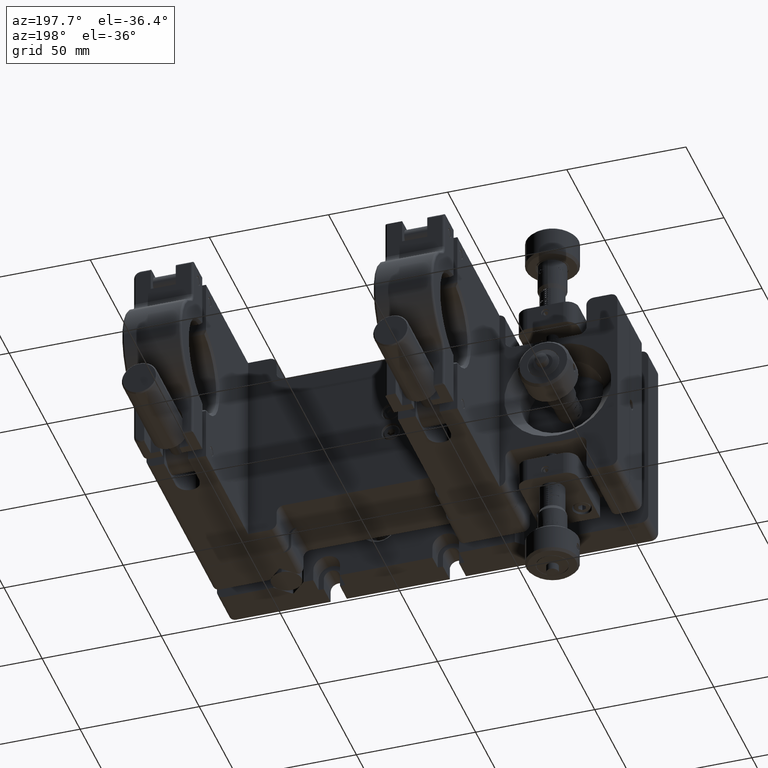
[diagram: clean part render]
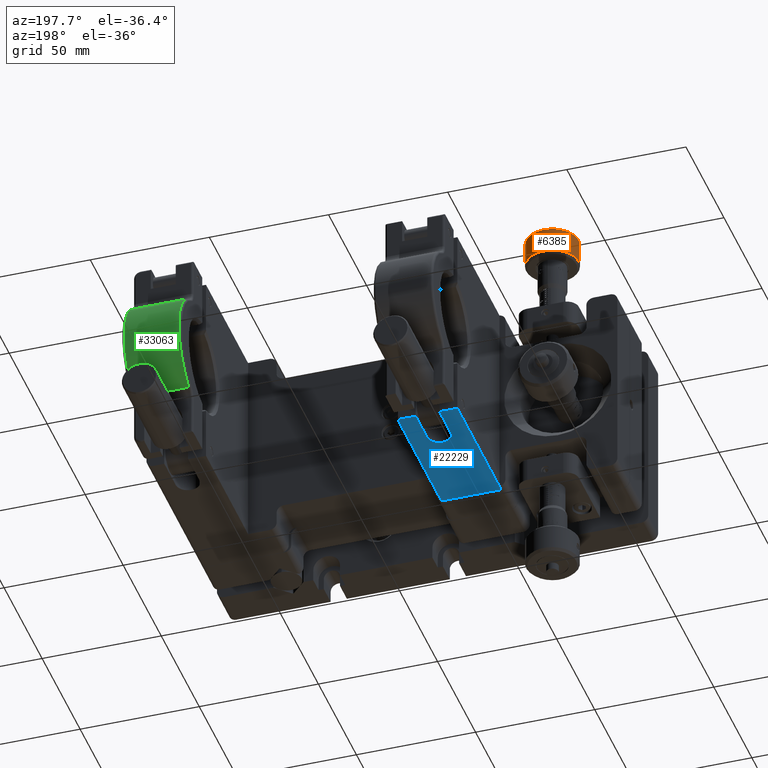
[diagram: same view with three faces highlighted in distinct colors, each labeled with its STEP entity id]
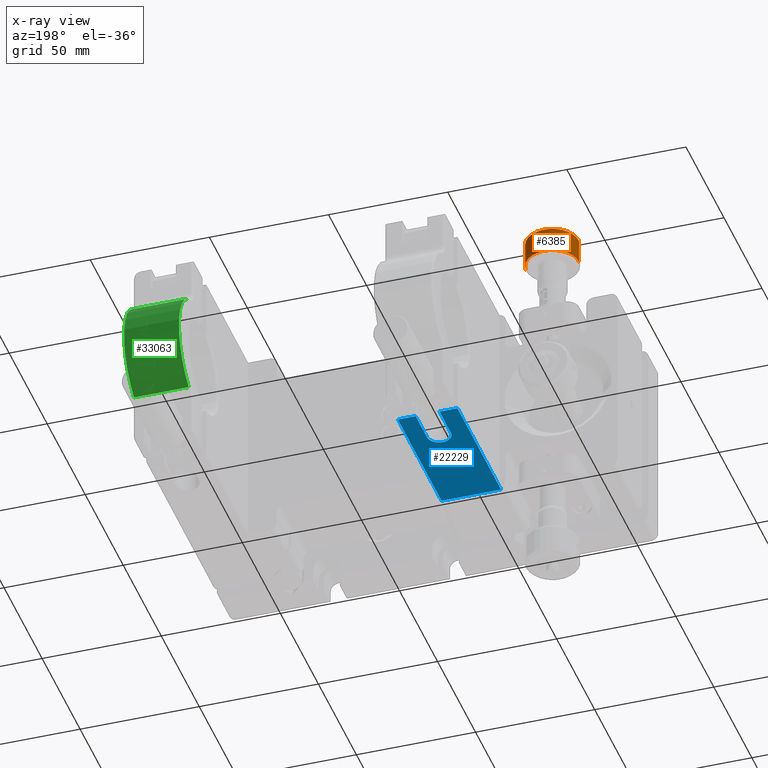
[diagram: x-ray of the same camera — body ghosted, the three highlighted faces saturated]
A machine part, auxiliary view with three faces highlighted in distinct colors.
The next image is the same camera in x-ray (body ghosted, the three faces saturated) — at least one of them is partly hidden behind the body in this view.
Their STEP definitions:

[orange] entity #6385 — the highlighted cylindrical surface (edge-blend (fillet) strip) has radius 11 mm, axis along (0, -0, 1).
#577 = CIRCLE ( 'NONE', #45514, 10.99999999999999289 ) ;
#1348 = CARTESIAN_POINT ( 'NONE',  ( -49.24743490391165324, 39.22147659464145164, 73.31698230728287058 ) ) ;
#1877 = CARTESIAN_POINT ( 'NONE',  ( -49.02399234990054566, 37.62612400110649702, 75.40000000000161151 ) ) ;
#2421 = EDGE_CURVE ( 'NONE', #47675, #41985, #31414, .T. ) ;
#2876 = DIRECTION ( 'NONE',  ( 1.534399302119773750E-16, -9.239891937054594829E-17, 1.000000000000000000 ) ) ;
#3062 = ORIENTED_EDGE ( 'NONE', *, *, #7423, .F. ) ;
#4293 = CARTESIAN_POINT ( 'NONE',  ( -49.25709353723303252, 39.26430977925058841, 73.75000000000163425 ) ) ;
#5588 = DIRECTION ( 'NONE',  ( 0.9978188772816595220, 0.06601127282796762086, 0.000000000000000000 ) ) ;
#6385 = ADVANCED_FACE ( 'NONE', ( #13189 ), #48201, .T. ) ;
#7151 = CARTESIAN_POINT ( 'NONE',  ( -49.02399234990054566, 37.62612400110649702, 68.50000000000163425 ) ) ;
#7423 = EDGE_CURVE ( 'NONE', #36316, #17946, #16661, .T. ) ;
#7750 = CARTESIAN_POINT ( 'NONE',  ( -49.02399234990054566, 37.62612400110649702, 72.10000000000164277 ) ) ;
#7763 = DIRECTION ( 'NONE',  ( 0.9978188772816595220, 0.06601127282796762086, 0.000000000000000000 ) ) ;
#7893 = CARTESIAN_POINT ( 'NONE',  ( -49.17620915534226356, 38.86253043917927386, 74.83967142858456612 ) ) ;
#8460 = CARTESIAN_POINT ( 'NONE',  ( -49.22200984546415725, 39.09924357259985328, 74.48140365633125271 ) ) ;
#8645 = CARTESIAN_POINT ( 'NONE',  ( -49.02399234990058829, 37.62612400110649702, 79.00000000000162004 ) ) ;
#9409 = B_SPLINE_CURVE_WITH_KNOTS ( 'NONE', 3,
 ( #40685, #54196, #1348, #14861, #36964, #15137, #16281, #25444, #11400, #41820, #15992, #33791 ),
 .UNSPECIFIED., .F., .F.,
 ( 4, 2, 2, 2, 2, 4 ),
 ( 0.005165937910799752245, 0.005811786772431807094, 0.006457635634063861943, 0.006780560064879889368, 0.007103484495695917660, 0.007749333357327972509 ),
 .UNSPECIFIED. ) ;
#11400 = CARTESIAN_POINT ( 'NONE',  ( -49.09624978631011061, 38.35542544317431179, 72.26753809889667934 ) ) ;
#11607 = ORIENTED_EDGE ( 'NONE', *, *, #51449, .T. ) ;
#11681 = EDGE_LOOP ( 'NONE', ( #53623, #51785, #13233, #11607, #3062, #37984, #15139 ) ) ;
#13043 = CARTESIAN_POINT ( 'NONE',  ( -49.14969980694294094, 38.71023746899343365, 74.99342857245446226 ) ) ;
#13189 = FACE_OUTER_BOUND ( 'NONE', #11681, .T. ) ;
#13233 = ORIENTED_EDGE ( 'NONE', *, *, #52459, .T. ) ;
#13652 = CARTESIAN_POINT ( 'NONE',  ( -59.99999999999884892, 36.89999999999886171, 79.00000000000162004 ) ) ;
#14861 = CARTESIAN_POINT ( 'NONE',  ( -49.21357904118007554, 39.05871087091723126, 72.91967307894962858 ) ) ;
#15041 = DIRECTION ( 'NONE',  ( 1.534399302119773750E-16, -9.239891937054594829E-17, 1.000000000000000000 ) ) ;
#15137 = CARTESIAN_POINT ( 'NONE',  ( -49.14987460866467472, 38.71125043657944786, 72.50756602743635426 ) ) ;
#15139 = ORIENTED_EDGE ( 'NONE', *, *, #27710, .T. ) ;
#15992 = CARTESIAN_POINT ( 'NONE',  ( -49.03839300840674298, 37.84380271395619388, 72.10000000000162856 ) ) ;
#16281 = CARTESIAN_POINT ( 'NONE',  ( -49.13606821760236443, 38.62715301422448988, 72.43791493255282887 ) ) ;
#16661 = LINE ( 'NONE', #38480, #36790 ) ;
#17914 = CARTESIAN_POINT ( 'NONE',  ( -49.25473060247862378, 39.25364445237889299, 73.96718926860043553 ) ) ;
#17946 = VERTEX_POINT ( 'NONE', #8645 ) ;
#18540 = DIRECTION ( 'NONE',  ( -0.9978188772816595220, -0.06601127282796762086, 0.000000000000000000 ) ) ;
#21086 = CARTESIAN_POINT ( 'NONE',  ( -49.10943419862590531, 38.45035500487776403, 75.18119796748949568 ) ) ;
#21508 = CARTESIAN_POINT ( 'NONE',  ( -59.99999999999880629, 36.89999999999885461, 67.50000000000163425 ) ) ;
#22216 = CARTESIAN_POINT ( 'NONE',  ( -49.07147866018654980, 38.15596357247730452, 75.31568685662094254 ) ) ;
#23132 = DIRECTION ( 'NONE',  ( 1.534399302119773750E-16, -9.239891937054593597E-17, 1.000000000000000000 ) ) ;
#25444 = CARTESIAN_POINT ( 'NONE',  ( -49.10930695835435955, 38.44947616302601290, 72.31826889236921829 ) ) ;
#25681 = CARTESIAN_POINT ( 'NONE',  ( -49.09614931041789987, 38.35466948460718584, 75.23283266930815216 ) ) ;
#26528 = CARTESIAN_POINT ( 'NONE',  ( -49.03996515845084048, 37.84278703092635254, 75.38919270049608201 ) ) ;
#27710 = EDGE_CURVE ( 'NONE', #40336, #45657, #9409, .T. ) ;
#28730 = DIRECTION ( 'NONE',  ( 1.534399302119773750E-16, -9.239891937054593597E-17, 1.000000000000000000 ) ) ;
#28792 = LINE ( 'NONE', #55490, #33300 ) ;
#28836 = CARTESIAN_POINT ( 'NONE',  ( -70.97600765009705981, 36.17387599889121219, 67.50000000000163425 ) ) ;
#30563 = CARTESIAN_POINT ( 'NONE',  ( -49.18876145783713127, 38.92996100948413840, 74.75649480344473830 ) ) ;
#31414 = CIRCLE ( 'NONE', #50685, 10.99999999999999289 ) ;
#32461 = EDGE_CURVE ( 'NONE', #36316, #40336, #50102, .T. ) ;
#32641 = EDGE_CURVE ( 'NONE', #47675, #45657, #28792, .T. ) ;
#33300 = VECTOR ( 'NONE', #15041, 1000.000000000000000 ) ;
#33791 = CARTESIAN_POINT ( 'NONE',  ( -49.02399234990054566, 37.62612400110649702, 72.10000000000164277 ) ) ;
#34122 = VERTEX_POINT ( 'NONE', #41892 ) ;
#34177 = CARTESIAN_POINT ( 'NONE',  ( -59.99999999999880629, 36.89999999999885461, 68.50000000000163425 ) ) ;
#34586 = CARTESIAN_POINT ( 'NONE',  ( -49.24566719432481676, 39.21187857343367256, 74.17891999544271187 ) ) ;
#36316 = VERTEX_POINT ( 'NONE', #1877 ) ;
#36790 = VECTOR ( 'NONE', #2876, 1000.000000000000000 ) ;
#36902 = LINE ( 'NONE', #28836, #49240 ) ;
#36964 = CARTESIAN_POINT ( 'NONE',  ( -49.18922546067236823, 38.93728998097869010, 72.73586319818639367 ) ) ;
#37984 = ORIENTED_EDGE ( 'NONE', *, *, #32461, .T. ) ;
#38480 = CARTESIAN_POINT ( 'NONE',  ( -49.02399234990055277, 37.62612400110649702, 67.50000000000163425 ) ) ;
#39729 = CARTESIAN_POINT ( 'NONE',  ( -49.25709353723303252, 39.26430977925058841, 73.75000000000163425 ) ) ;
#40336 = VERTEX_POINT ( 'NONE', #4293 ) ;
#40685 = CARTESIAN_POINT ( 'NONE',  ( -49.25709353723303252, 39.26430977925058841, 73.75000000000163425 ) ) ;
#41204 = DIRECTION ( 'NONE',  ( 1.534399302119773750E-16, -9.239891937054594829E-17, 1.000000000000000000 ) ) ;
#41820 = CARTESIAN_POINT ( 'NONE',  ( -49.05920813477568032, 38.05723858149438854, 72.14303737351924894 ) ) ;
#41892 = CARTESIAN_POINT ( 'NONE',  ( -70.97600765009708823, 36.17387599889121219, 79.00000000000162004 ) ) ;
#41985 = VERTEX_POINT ( 'NONE', #44426 ) ;
#43185 = CARTESIAN_POINT ( 'NONE',  ( -49.21161579266404118, 39.04811235983540740, 74.57794586901701450 ) ) ;
#44066 = DIRECTION ( 'NONE',  ( -1.534399302119773750E-16, 9.239891937054593597E-17, -1.000000000000000000 ) ) ;
#44426 = CARTESIAN_POINT ( 'NONE',  ( -70.97600765009707402, 36.17387599889121930, 68.50000000000163425 ) ) ;
#45514 = AXIS2_PLACEMENT_3D ( 'NONE', #13652, #44066, #5588 ) ;
#45657 = VERTEX_POINT ( 'NONE', #7750 ) ;
#47518 = CARTESIAN_POINT ( 'NONE',  ( -49.02399234990054566, 37.62612400110649702, 75.40000000000161151 ) ) ;
#47675 = VERTEX_POINT ( 'NONE', #7151 ) ;
#47785 = CARTESIAN_POINT ( 'NONE',  ( -49.03110611997075097, 37.73365493878720400, 75.40000000000161151 ) ) ;
#48070 = CARTESIAN_POINT ( 'NONE',  ( -49.23901935054644952, 39.18101721277579230, 74.28176196974995094 ) ) ;
#48201 = CYLINDRICAL_SURFACE ( 'NONE', #50717, 10.99999999999999289 ) ;
#49240 = VECTOR ( 'NONE', #41204, 1000.000000000000000 ) ;
#50102 = B_SPLINE_CURVE_WITH_KNOTS ( 'NONE', 3,
 ( #47518, #47785, #26528, #52389, #22216, #25681, #21086, #52116, #13043, #7893, #30563, #43185, #8460, #48070, #34586, #17914, #56119, #39729 ),
 .UNSPECIFIED., .F., .F.,
 ( 4, 2, 2, 2, 2, 2, 2, 2, 4 ),
 ( 0.002583584052896394610, 0.002906378285134314423, 0.003229172517372234236, 0.003551966749610153615, 0.003874760981848073427, 0.004197555214085993240, 0.004520349446323912619, 0.004843143678561832866, 0.005165937910799752245 ),
 .UNSPECIFIED. ) ;
#50685 = AXIS2_PLACEMENT_3D ( 'NONE', #34177, #28730, #7763 ) ;
#50717 = AXIS2_PLACEMENT_3D ( 'NONE', #21508, #23132, #18540 ) ;
#51449 = EDGE_CURVE ( 'NONE', #34122, #17946, #577, .T. ) ;
#51785 = ORIENTED_EDGE ( 'NONE', *, *, #2421, .T. ) ;
#52116 = CARTESIAN_POINT ( 'NONE',  ( -49.13612717338087066, 38.62751015112931441, 75.06178549963286173 ) ) ;
#52389 = CARTESIAN_POINT ( 'NONE',  ( -49.06014421114666391, 38.05358850234652834, 75.34692732622586675 ) ) ;
#52459 = EDGE_CURVE ( 'NONE', #41985, #34122, #36902, .T. ) ;
#53623 = ORIENTED_EDGE ( 'NONE', *, *, #32641, .F. ) ;
#54196 = CARTESIAN_POINT ( 'NONE',  ( -49.25709353723302542, 39.26430977925059551, 73.53443318924109917 ) ) ;
#55490 = CARTESIAN_POINT ( 'NONE',  ( -49.02399234990055277, 37.62612400110649702, 67.50000000000163425 ) ) ;
#56119 = CARTESIAN_POINT ( 'NONE',  ( -49.25709353723303963, 39.26430977925060262, 73.85773994863231451 ) ) ;

[blue] entity #22229 — the highlighted planar face has unit normal (0, 0, 1).
#1005 = VECTOR ( 'NONE', #32687, 1000.000000000000000 ) ;
#1510 = ORIENTED_EDGE ( 'NONE', *, *, #10404, .T. ) ;
#1986 = DIRECTION ( 'NONE',  ( -1.000000000000000000, 0.000000000000000000, 1.387778780781445478E-15 ) ) ;
#1990 = VECTOR ( 'NONE', #52372, 1000.000000000000000 ) ;
#3993 = PLANE ( 'NONE',  #16522 ) ;
#5113 = ORIENTED_EDGE ( 'NONE', *, *, #47598, .F. ) ;
#5479 = EDGE_CURVE ( 'NONE', #23826, #36243, #16512, .T. ) ;
#6741 = VERTEX_POINT ( 'NONE', #43823 ) ;
#7412 = ORIENTED_EDGE ( 'NONE', *, *, #23514, .F. ) ;
#7700 = EDGE_LOOP ( 'NONE', ( #30034, #11242, #46405, #15299, #55533, #5113, #7412, #1510 ) ) ;
#9001 = CARTESIAN_POINT ( 'NONE',  ( -15.50000000000007105, 43.29999999999989058, -42.50000000000010658 ) ) ;
#10404 = EDGE_CURVE ( 'NONE', #34890, #36243, #34849, .T. ) ;
#11242 = ORIENTED_EDGE ( 'NONE', *, *, #48121, .F. ) ;
#12843 = CARTESIAN_POINT ( 'NONE',  ( -33.00000000000007816, 85.79999999999988347, -42.50000000000016342 ) ) ;
#13463 = FACE_OUTER_BOUND ( 'NONE', #7700, .T. ) ;
#14503 = VECTOR ( 'NONE', #36440, 1000.000000000000000 ) ;
#15299 = ORIENTED_EDGE ( 'NONE', *, *, #27457, .T. ) ;
#15928 = VERTEX_POINT ( 'NONE', #16346 ) ;
#16346 = CARTESIAN_POINT ( 'NONE',  ( -23.00000000000007461, 100.7999999999998977, -42.50000000000020606 ) ) ;
#16512 = LINE ( 'NONE', #51527, #49276 ) ;
#16522 = AXIS2_PLACEMENT_3D ( 'NONE', #29842, #52522, #47357 ) ;
#17543 = CARTESIAN_POINT ( 'NONE',  ( -40.50000000000007816, 100.7999999999998835, -42.50000000000017053 ) ) ;
#17615 = DIRECTION ( 'NONE',  ( 9.289481508374450002E-17, -1.000000000000000000, 1.500687383989194867E-15 ) ) ;
#19196 = LINE ( 'NONE', #35573, #1005 ) ;
#19908 = VECTOR ( 'NONE', #52999, 1000.000000000000000 ) ;
#21721 = VECTOR ( 'NONE', #56011, 1000.000000000000000 ) ;
#22229 = ADVANCED_FACE ( 'NONE', ( #13463 ), #3993, .F. ) ;
#23486 = CARTESIAN_POINT ( 'NONE',  ( -15.50000000000007105, 43.29999999999989058, -42.50000000000010658 ) ) ;
#23514 = EDGE_CURVE ( 'NONE', #34890, #6741, #19196, .T. ) ;
#23826 = VERTEX_POINT ( 'NONE', #12843 ) ;
#27362 = AXIS2_PLACEMENT_3D ( 'NONE', #40743, #41319, #1986 ) ;
#27457 = EDGE_CURVE ( 'NONE', #15928, #41050, #54333, .T. ) ;
#28093 = VECTOR ( 'NONE', #17615, 1000.000000000000000 ) ;
#28697 = CARTESIAN_POINT ( 'NONE',  ( -23.00000000000007105, 85.79999999999989768, -42.50000000000016342 ) ) ;
#29842 = CARTESIAN_POINT ( 'NONE',  ( -40.50000000000007105, 43.29999999999989058, -42.50000000000007816 ) ) ;
#29968 = LINE ( 'NONE', #9001, #28093 ) ;
#30034 = ORIENTED_EDGE ( 'NONE', *, *, #5479, .F. ) ;
#31552 = CARTESIAN_POINT ( 'NONE',  ( -40.50000000000007105, 43.29999999999989058, -42.50000000000007816 ) ) ;
#31780 = VERTEX_POINT ( 'NONE', #23486 ) ;
#32687 = DIRECTION ( 'NONE',  ( 9.289481508374450002E-17, -1.000000000000000000, 1.500687383989194867E-15 ) ) ;
#34849 = LINE ( 'NONE', #44292, #1990 ) ;
#34890 = VERTEX_POINT ( 'NONE', #17543 ) ;
#35189 = CARTESIAN_POINT ( 'NONE',  ( -23.00000000000007461, 85.79999999999988347, -42.50000000000017764 ) ) ;
#35573 = CARTESIAN_POINT ( 'NONE',  ( -40.50000000000007105, 43.29999999999989058, -42.50000000000007816 ) ) ;
#36243 = VERTEX_POINT ( 'NONE', #54712 ) ;
#36440 = DIRECTION ( 'NONE',  ( 1.000000000000000000, 8.985754444169092279E-17, -8.951173136040324607E-16 ) ) ;
#37017 = LINE ( 'NONE', #31552, #14503 ) ;
#38887 = DIRECTION ( 'NONE',  ( -9.289481508374461096E-17, 1.000000000000000000, -1.620458674568051667E-15 ) ) ;
#40625 = LINE ( 'NONE', #35189, #19908 ) ;
#40743 = CARTESIAN_POINT ( 'NONE',  ( -28.00000000000007816, 85.79999999999989768, -42.50000000000015632 ) ) ;
#41050 = VERTEX_POINT ( 'NONE', #56519 ) ;
#41319 = DIRECTION ( 'NONE',  ( -9.575673587391977133E-16, -1.501591950512828667E-15, -1.000000000000000000 ) ) ;
#43422 = EDGE_CURVE ( 'NONE', #41050, #31780, #29968, .T. ) ;
#43823 = CARTESIAN_POINT ( 'NONE',  ( -40.50000000000007105, 43.29999999999989058, -42.50000000000007816 ) ) ;
#44292 = CARTESIAN_POINT ( 'NONE',  ( -40.50000000000007816, 100.7999999999998835, -42.50000000000017053 ) ) ;
#46405 = ORIENTED_EDGE ( 'NONE', *, *, #52414, .T. ) ;
#47357 = DIRECTION ( 'NONE',  ( 1.000000000000000000, 8.985754444169092279E-17, -8.951173136040324607E-16 ) ) ;
#47598 = EDGE_CURVE ( 'NONE', #6741, #31780, #37017, .T. ) ;
#48121 = EDGE_CURVE ( 'NONE', #50307, #23826, #56717, .T. ) ;
#48455 = CARTESIAN_POINT ( 'NONE',  ( -40.50000000000007816, 100.7999999999998835, -42.50000000000017053 ) ) ;
#49276 = VECTOR ( 'NONE', #38887, 1000.000000000000000 ) ;
#50307 = VERTEX_POINT ( 'NONE', #28697 ) ;
#51527 = CARTESIAN_POINT ( 'NONE',  ( -33.00000000000007816, 85.79999999999988347, -42.50000000000016342 ) ) ;
#52372 = DIRECTION ( 'NONE',  ( 1.000000000000000000, 8.985754444169092279E-17, -8.951173136040324607E-16 ) ) ;
#52414 = EDGE_CURVE ( 'NONE', #50307, #15928, #40625, .T. ) ;
#52522 = DIRECTION ( 'NONE',  ( 8.951173136040322635E-16, 1.501591950512828470E-15, 1.000000000000000000 ) ) ;
#52999 = DIRECTION ( 'NONE',  ( -9.289481508374461096E-17, 1.000000000000000000, -1.620458674568051667E-15 ) ) ;
#54333 = LINE ( 'NONE', #48455, #21721 ) ;
#54712 = CARTESIAN_POINT ( 'NONE',  ( -33.00000000000007816, 100.7999999999998835, -42.50000000000017764 ) ) ;
#55533 = ORIENTED_EDGE ( 'NONE', *, *, #43422, .T. ) ;
#56011 = DIRECTION ( 'NONE',  ( 1.000000000000000000, 8.985754444169092279E-17, -8.951173136040324607E-16 ) ) ;
#56519 = CARTESIAN_POINT ( 'NONE',  ( -15.50000000000007638, 100.7999999999998977, -42.50000000000019895 ) ) ;
#56717 = CIRCLE ( 'NONE', #27362, 5.000000000000000888 ) ;

[green] entity #33063 — the highlighted cylindrical surface (partial cylindrical patch) has radius 25 mm, axis along (1, 0, -0).
#2953 = CARTESIAN_POINT ( 'NONE',  ( 65.99999999999987210, 120.3833333333333258, -21.88590997778193881 ) ) ;
#9508 = VECTOR ( 'NONE', #23253, 1000.000000000000000 ) ;
#12177 = CARTESIAN_POINT ( 'NONE',  ( 88.99999999999995737, 108.3000000000000114, -5.062877723621162651E-13 ) ) ;
#12266 = CARTESIAN_POINT ( 'NONE',  ( 65.99999999999995737, 108.3000000000000114, -4.315975183804589093E-13 ) ) ;
#12500 = VERTEX_POINT ( 'NONE', #2953 ) ;
#12620 = CIRCLE ( 'NONE', #17219, 25.00000000000000000 ) ;
#12757 = VERTEX_POINT ( 'NONE', #35639 ) ;
#15248 = DIRECTION ( 'NONE',  ( 1.000000000000000000, 9.679643834559817582E-17, -3.247402347028582881E-15 ) ) ;
#17219 = AXIS2_PLACEMENT_3D ( 'NONE', #12177, #33733, #29686 ) ;
#18050 = CARTESIAN_POINT ( 'NONE',  ( 88.99999999999988631, 120.3833333333333258, -21.88590997778201341 ) ) ;
#21064 = VERTEX_POINT ( 'NONE', #18050 ) ;
#23151 = AXIS2_PLACEMENT_3D ( 'NONE', #12266, #29771, #47286 ) ;
#23253 = DIRECTION ( 'NONE',  ( 1.000000000000000000, 9.679643834559818814E-17, -3.247402347028582881E-15 ) ) ;
#28165 = CARTESIAN_POINT ( 'NONE',  ( 64.99999999999995737, 108.3000000000000114, -4.283501160334303265E-13 ) ) ;
#28994 = VECTOR ( 'NONE', #37956, 1000.000000000000000 ) ;
#29686 = DIRECTION ( 'NONE',  ( -3.330669073875469621E-15, -1.665334536937734811E-15, -1.000000000000000000 ) ) ;
#29771 = DIRECTION ( 'NONE',  ( 1.000000000000000000, 9.679643834559817582E-17, -3.247402347028582881E-15 ) ) ;
#30957 = CARTESIAN_POINT ( 'NONE',  ( 89.00000000000002842, 120.3833333333333968, 21.88590997778096536 ) ) ;
#32040 = EDGE_CURVE ( 'NONE', #12500, #12757, #50663, .T. ) ;
#32214 = EDGE_LOOP ( 'NONE', ( #39418, #38477, #38377, #54812 ) ) ;
#33063 = ADVANCED_FACE ( 'NONE', ( #41091 ), #49973, .T. ) ;
#33733 = DIRECTION ( 'NONE',  ( -1.000000000000000000, -9.679643834559817582E-17, 3.247402347028582881E-15 ) ) ;
#33892 = EDGE_CURVE ( 'NONE', #12757, #54349, #54282, .T. ) ;
#35639 = CARTESIAN_POINT ( 'NONE',  ( 66.00000000000002842, 120.3833333333333968, 21.88590997778104352 ) ) ;
#36989 = AXIS2_PLACEMENT_3D ( 'NONE', #28165, #15248, #39035 ) ;
#37956 = DIRECTION ( 'NONE',  ( -1.000000000000000000, -9.679643834559818814E-17, 3.247402347028582881E-15 ) ) ;
#38377 = ORIENTED_EDGE ( 'NONE', *, *, #33892, .T. ) ;
#38477 = ORIENTED_EDGE ( 'NONE', *, *, #32040, .T. ) ;
#39035 = DIRECTION ( 'NONE',  ( -3.330669073875469621E-15, -1.665334536937734811E-15, -1.000000000000000000 ) ) ;
#39418 = ORIENTED_EDGE ( 'NONE', *, *, #40542, .T. ) ;
#40542 = EDGE_CURVE ( 'NONE', #21064, #12500, #42245, .T. ) ;
#41091 = FACE_OUTER_BOUND ( 'NONE', #32214, .T. ) ;
#42245 = LINE ( 'NONE', #45707, #28994 ) ;
#44413 = EDGE_CURVE ( 'NONE', #54349, #21064, #12620, .T. ) ;
#44794 = CARTESIAN_POINT ( 'NONE',  ( 65.00000000000002842, 120.3833333333333968, 21.88590997778104708 ) ) ;
#45707 = CARTESIAN_POINT ( 'NONE',  ( 64.99999999999987210, 120.3833333333333258, -21.88590997778193525 ) ) ;
#47286 = DIRECTION ( 'NONE',  ( -3.330669073875469621E-15, -1.665334536937734811E-15, -1.000000000000000000 ) ) ;
#49973 = CYLINDRICAL_SURFACE ( 'NONE', #36989, 25.00000000000000000 ) ;
#50663 = CIRCLE ( 'NONE', #23151, 25.00000000000000000 ) ;
#54282 = LINE ( 'NONE', #44794, #9508 ) ;
#54349 = VERTEX_POINT ( 'NONE', #30957 ) ;
#54812 = ORIENTED_EDGE ( 'NONE', *, *, #44413, .T. ) ;